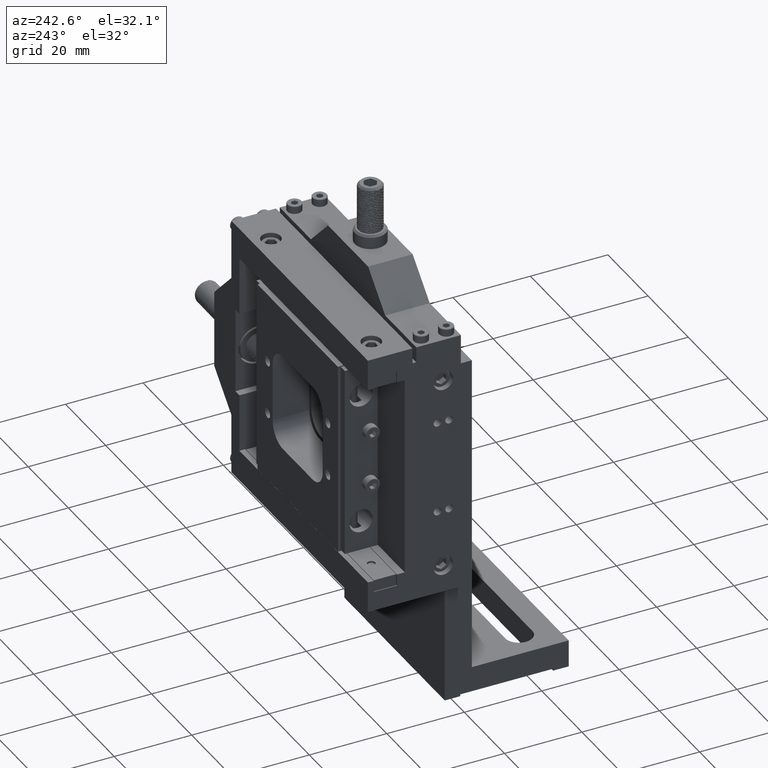
[diagram: clean part render]
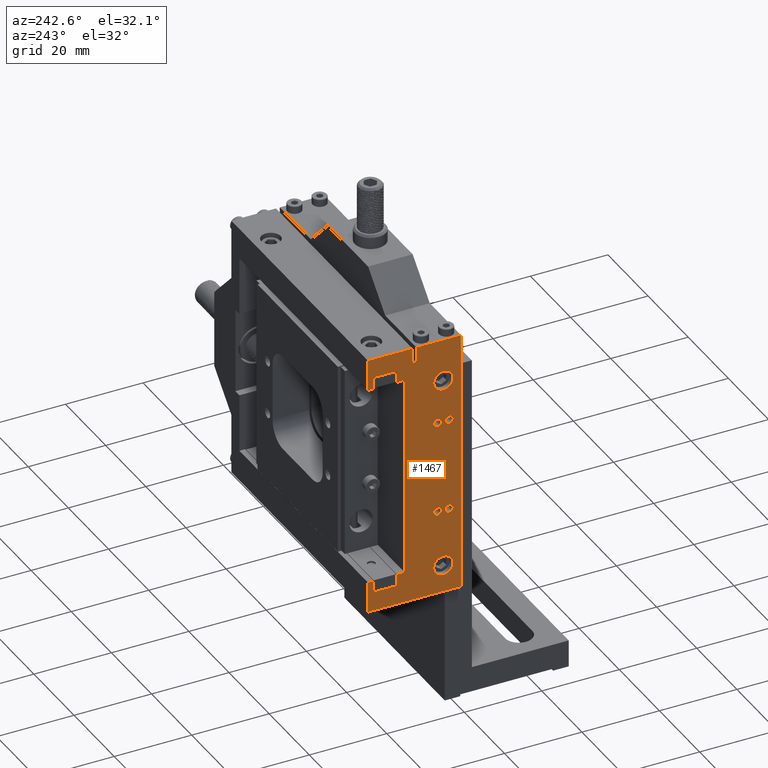
[diagram: same view with one face highlighted and labeled with its STEP entity id]
A machine part, auxiliary view. The second image highlights one B-rep face of the part: STEP entity #1467.
In plain terms, the highlighted planar face has unit normal (-1, 0, 0).
Its self-contained STEP definition (entity closure, byte-faithful):
#210=FACE_BOUND('',#4660,.T.);
#211=FACE_BOUND('',#4661,.T.);
#212=FACE_BOUND('',#4662,.T.);
#213=FACE_BOUND('',#4663,.T.);
#214=FACE_BOUND('',#4664,.T.);
#215=FACE_BOUND('',#4665,.T.);
#1467=ADVANCED_FACE('',(#2992,#210,#211,#212,#213,#214,#215),#23662,.T.);
#2992=FACE_OUTER_BOUND('',#4659,.T.);
#4659=EDGE_LOOP('',(#11293,#11294,#11295,#11296,#11297,#11298,#11299,#11300,
#11301,#11302,#11303,#11304,#11305,#11306,#11307,#11308,#11309,#11310,#11311,
#11312));
#4660=EDGE_LOOP('',(#11313,#11314));
#4661=EDGE_LOOP('',(#11315,#11316));
#4662=EDGE_LOOP('',(#11317,#11318));
#4663=EDGE_LOOP('',(#11319,#11320));
#4664=EDGE_LOOP('',(#11321,#11322));
#4665=EDGE_LOOP('',(#11323,#11324));
#11293=ORIENTED_EDGE('',*,*,#15641,.F.);
#11294=ORIENTED_EDGE('',*,*,#15644,.T.);
#11295=ORIENTED_EDGE('',*,*,#15104,.F.);
#11296=ORIENTED_EDGE('',*,*,#15235,.F.);
#11297=ORIENTED_EDGE('',*,*,#15236,.F.);
#11298=ORIENTED_EDGE('',*,*,#15215,.F.);
#11299=ORIENTED_EDGE('',*,*,#15238,.F.);
#11300=ORIENTED_EDGE('',*,*,#15240,.F.);
#11301=ORIENTED_EDGE('',*,*,#15241,.F.);
#11302=ORIENTED_EDGE('',*,*,#15196,.F.);
#11303=ORIENTED_EDGE('',*,*,#15199,.F.);
#11304=ORIENTED_EDGE('',*,*,#15201,.F.);
#11305=ORIENTED_EDGE('',*,*,#15203,.F.);
#11306=ORIENTED_EDGE('',*,*,#15205,.F.);
#11307=ORIENTED_EDGE('',*,*,#15207,.F.);
#11308=ORIENTED_EDGE('',*,*,#15209,.F.);
#11309=ORIENTED_EDGE('',*,*,#15211,.F.);
#11310=ORIENTED_EDGE('',*,*,#15213,.F.);
#11311=ORIENTED_EDGE('',*,*,#15218,.F.);
#11312=ORIENTED_EDGE('',*,*,#15630,.F.);
#11313=ORIENTED_EDGE('',*,*,#15232,.T.);
#11314=ORIENTED_EDGE('',*,*,#16134,.T.);
#11315=ORIENTED_EDGE('',*,*,#15228,.T.);
#11316=ORIENTED_EDGE('',*,*,#16131,.T.);
#11317=ORIENTED_EDGE('',*,*,#15934,.T.);
#11318=ORIENTED_EDGE('',*,*,#16127,.T.);
#11319=ORIENTED_EDGE('',*,*,#15932,.T.);
#11320=ORIENTED_EDGE('',*,*,#16124,.T.);
#11321=ORIENTED_EDGE('',*,*,#15930,.T.);
#11322=ORIENTED_EDGE('',*,*,#16121,.T.);
#11323=ORIENTED_EDGE('',*,*,#15928,.T.);
#11324=ORIENTED_EDGE('',*,*,#16118,.T.);
#15104=EDGE_CURVE('',#21596,#21591,#19319,.T.);
#15196=EDGE_CURVE('',#21673,#21674,#19395,.T.);
#15199=EDGE_CURVE('',#21675,#21673,#19398,.T.);
#15201=EDGE_CURVE('',#21676,#21675,#19400,.T.);
#15203=EDGE_CURVE('',#21677,#21676,#19402,.T.);
#15205=EDGE_CURVE('',#21678,#21677,#19404,.T.);
#15207=EDGE_CURVE('',#21679,#21678,#19406,.T.);
#15209=EDGE_CURVE('',#21680,#21679,#19408,.T.);
#15211=EDGE_CURVE('',#21681,#21680,#19410,.T.);
#15213=EDGE_CURVE('',#21682,#21681,#19412,.T.);
#15215=EDGE_CURVE('',#21683,#21684,#19414,.T.);
#15218=EDGE_CURVE('',#21685,#21682,#19417,.T.);
#15228=EDGE_CURVE('',#21697,#22121,#16854,.T.);
#15232=EDGE_CURVE('',#21699,#22123,#16856,.T.);
#15235=EDGE_CURVE('',#21700,#21596,#19430,.T.);
#15236=EDGE_CURVE('',#21684,#21700,#19431,.T.);
#15238=EDGE_CURVE('',#21701,#21683,#19433,.T.);
#15240=EDGE_CURVE('',#21702,#21701,#19435,.T.);
#15241=EDGE_CURVE('',#21674,#21702,#19436,.T.);
#15630=EDGE_CURVE('',#21876,#21685,#19781,.T.);
#15641=EDGE_CURVE('',#21881,#21876,#19792,.T.);
#15644=EDGE_CURVE('',#21881,#21591,#19795,.T.);
#15928=EDGE_CURVE('',#21688,#22114,#16982,.T.);
#15930=EDGE_CURVE('',#21690,#22116,#16984,.T.);
#15932=EDGE_CURVE('',#21692,#22118,#16986,.T.);
#15934=EDGE_CURVE('',#21694,#22120,#16988,.T.);
#16118=EDGE_CURVE('',#22114,#21688,#17102,.T.);
#16121=EDGE_CURVE('',#22116,#21690,#17104,.T.);
#16124=EDGE_CURVE('',#22118,#21692,#17106,.T.);
#16127=EDGE_CURVE('',#22120,#21694,#17108,.T.);
#16131=EDGE_CURVE('',#22121,#21697,#17111,.T.);
#16134=EDGE_CURVE('',#22123,#21699,#17113,.T.);
#16854=(
BOUNDED_CURVE()
B_SPLINE_CURVE(2,(#84515,#84516,#84517,#84518,#84519),.UNSPECIFIED.,.F.,
 .F.)
B_SPLINE_CURVE_WITH_KNOTS((3,2,3),(-15.707963267949,-11.7809724509617,-7.85398163397448),
 .UNSPECIFIED.)
CURVE()
GEOMETRIC_REPRESENTATION_ITEM()
RATIONAL_B_SPLINE_CURVE((1.,0.707106781186548,1.,0.707106781186548,1.))
REPRESENTATION_ITEM('')
);
#16856=(
BOUNDED_CURVE()
B_SPLINE_CURVE(2,(#84582,#84583,#84584,#84585,#84586),.UNSPECIFIED.,.F.,
 .F.)
B_SPLINE_CURVE_WITH_KNOTS((3,2,3),(-15.707963267949,-11.7809724509617,-7.85398163397449),
 .UNSPECIFIED.)
CURVE()
GEOMETRIC_REPRESENTATION_ITEM()
RATIONAL_B_SPLINE_CURVE((1.,0.707106781186548,1.,0.707106781186548,1.))
REPRESENTATION_ITEM('')
);
#16982=(
BOUNDED_CURVE()
B_SPLINE_CURVE(2,(#91999,#92000,#92001,#92002,#92003),.UNSPECIFIED.,.F.,
 .F.)
B_SPLINE_CURVE_WITH_KNOTS((3,2,3),(-1.58100650291906,-2.22044604925031E-16,
1.58100650291906),.UNSPECIFIED.)
CURVE()
GEOMETRIC_REPRESENTATION_ITEM()
RATIONAL_B_SPLINE_CURVE((1.,0.707106781186548,1.,0.707106781186547,1.))
REPRESENTATION_ITEM('')
);
#16984=(
BOUNDED_CURVE()
B_SPLINE_CURVE(2,(#92009,#92010,#92011,#92012,#92013),.UNSPECIFIED.,.F.,
 .F.)
B_SPLINE_CURVE_WITH_KNOTS((3,2,3),(-1.58100650291907,2.22044604925031E-16,
1.58100650291907),.UNSPECIFIED.)
CURVE()
GEOMETRIC_REPRESENTATION_ITEM()
RATIONAL_B_SPLINE_CURVE((1.,0.707106781186548,1.,0.707106781186547,1.))
REPRESENTATION_ITEM('')
);
#16986=(
BOUNDED_CURVE()
B_SPLINE_CURVE(2,(#92019,#92020,#92021,#92022,#92023),.UNSPECIFIED.,.F.,
 .F.)
B_SPLINE_CURVE_WITH_KNOTS((3,2,3),(-1.58100650291906,-2.22044604925031E-16,
1.58100650291906),.UNSPECIFIED.)
CURVE()
GEOMETRIC_REPRESENTATION_ITEM()
RATIONAL_B_SPLINE_CURVE((1.,0.707106781186548,1.,0.707106781186547,1.))
REPRESENTATION_ITEM('')
);
#16988=(
BOUNDED_CURVE()
B_SPLINE_CURVE(2,(#92029,#92030,#92031,#92032,#92033),.UNSPECIFIED.,.F.,
 .F.)
B_SPLINE_CURVE_WITH_KNOTS((3,2,3),(-1.58100650291907,2.22044604925031E-16,
1.58100650291907),.UNSPECIFIED.)
CURVE()
GEOMETRIC_REPRESENTATION_ITEM()
RATIONAL_B_SPLINE_CURVE((1.,0.707106781186548,1.,0.707106781186547,1.))
REPRESENTATION_ITEM('')
);
#17102=(
BOUNDED_CURVE()
B_SPLINE_CURVE(2,(#93065,#93066,#93067,#93068,#93069),.UNSPECIFIED.,.F.,
 .F.)
B_SPLINE_CURVE_WITH_KNOTS((3,2,3),(1.58100650291906,3.16201300583812,4.74301950875719),
 .UNSPECIFIED.)
CURVE()
GEOMETRIC_REPRESENTATION_ITEM()
RATIONAL_B_SPLINE_CURVE((1.,0.707106781186548,1.,0.707106781186548,1.))
REPRESENTATION_ITEM('')
);
#17104=(
BOUNDED_CURVE()
B_SPLINE_CURVE(2,(#93077,#93078,#93079,#93080,#93081),.UNSPECIFIED.,.F.,
 .F.)
B_SPLINE_CURVE_WITH_KNOTS((3,2,3),(1.58100650291907,3.16201300583813,4.7430195087572),
 .UNSPECIFIED.)
CURVE()
GEOMETRIC_REPRESENTATION_ITEM()
RATIONAL_B_SPLINE_CURVE((1.,0.707106781186548,1.,0.707106781186548,1.))
REPRESENTATION_ITEM('')
);
#17106=(
BOUNDED_CURVE()
B_SPLINE_CURVE(2,(#93089,#93090,#93091,#93092,#93093),.UNSPECIFIED.,.F.,
 .F.)
B_SPLINE_CURVE_WITH_KNOTS((3,2,3),(1.58100650291906,3.16201300583812,4.74301950875719),
 .UNSPECIFIED.)
CURVE()
GEOMETRIC_REPRESENTATION_ITEM()
RATIONAL_B_SPLINE_CURVE((1.,0.707106781186548,1.,0.707106781186548,1.))
REPRESENTATION_ITEM('')
);
#17108=(
BOUNDED_CURVE()
B_SPLINE_CURVE(2,(#93101,#93102,#93103,#93104,#93105),.UNSPECIFIED.,.F.,
 .F.)
B_SPLINE_CURVE_WITH_KNOTS((3,2,3),(1.58100650291907,3.16201300583813,4.7430195087572),
 .UNSPECIFIED.)
CURVE()
GEOMETRIC_REPRESENTATION_ITEM()
RATIONAL_B_SPLINE_CURVE((1.,0.707106781186548,1.,0.707106781186548,1.))
REPRESENTATION_ITEM('')
);
#17111=(
BOUNDED_CURVE()
B_SPLINE_CURVE(2,(#93118,#93119,#93120,#93121,#93122),.UNSPECIFIED.,.F.,
 .F.)
B_SPLINE_CURVE_WITH_KNOTS((3,2,3),(-7.85398163397448,-3.92699081698724,
0.),.UNSPECIFIED.)
CURVE()
GEOMETRIC_REPRESENTATION_ITEM()
RATIONAL_B_SPLINE_CURVE((1.,0.707106781186548,1.,0.707106781186548,1.))
REPRESENTATION_ITEM('')
);
#17113=(
BOUNDED_CURVE()
B_SPLINE_CURVE(2,(#93130,#93131,#93132,#93133,#93134),.UNSPECIFIED.,.F.,
 .F.)
B_SPLINE_CURVE_WITH_KNOTS((3,2,3),(-7.85398163397449,-3.92699081698724,
0.),.UNSPECIFIED.)
CURVE()
GEOMETRIC_REPRESENTATION_ITEM()
RATIONAL_B_SPLINE_CURVE((1.,0.707106781186547,1.,0.707106781186547,1.))
REPRESENTATION_ITEM('')
);
#19319=B_SPLINE_CURVE_WITH_KNOTS('',1,(#84159,#84160),.UNSPECIFIED.,.F.,
 .F.,(2,2),(0.,1.0000000000001),.UNSPECIFIED.);
#19395=B_SPLINE_CURVE_WITH_KNOTS('',1,(#84448,#84449),.UNSPECIFIED.,.F.,
 .F.,(2,2),(0.,3.00000000000001),.UNSPECIFIED.);
#19398=B_SPLINE_CURVE_WITH_KNOTS('',1,(#84454,#84455),.UNSPECIFIED.,.F.,
 .F.,(2,2),(0.,2.),.UNSPECIFIED.);
#19400=B_SPLINE_CURVE_WITH_KNOTS('',1,(#84458,#84459),.UNSPECIFIED.,.F.,
 .F.,(2,2),(0.,52.),.UNSPECIFIED.);
#19402=B_SPLINE_CURVE_WITH_KNOTS('',1,(#84462,#84463),.UNSPECIFIED.,.F.,
 .F.,(2,2),(0.,2.),.UNSPECIFIED.);
#19404=B_SPLINE_CURVE_WITH_KNOTS('',1,(#84466,#84467),.UNSPECIFIED.,.F.,
 .F.,(2,2),(0.,3.0000000000001),.UNSPECIFIED.);
#19406=B_SPLINE_CURVE_WITH_KNOTS('',1,(#84470,#84471),.UNSPECIFIED.,.F.,
 .F.,(2,2),(0.,6.),.UNSPECIFIED.);
#19408=B_SPLINE_CURVE_WITH_KNOTS('',1,(#84474,#84475),.UNSPECIFIED.,.F.,
 .F.,(2,2),(0.,3.0000000000001),.UNSPECIFIED.);
#19410=B_SPLINE_CURVE_WITH_KNOTS('',1,(#84478,#84479),.UNSPECIFIED.,.F.,
 .F.,(2,2),(0.,1.5),.UNSPECIFIED.);
#19412=B_SPLINE_CURVE_WITH_KNOTS('',1,(#84482,#84483),.UNSPECIFIED.,.F.,
 .F.,(2,2),(0.,8.0000000000001),.UNSPECIFIED.);
#19414=B_SPLINE_CURVE_WITH_KNOTS('',1,(#84486,#84487),.UNSPECIFIED.,.F.,
 .F.,(2,2),(0.,8.00000000000001),.UNSPECIFIED.);
#19417=B_SPLINE_CURVE_WITH_KNOTS('',1,(#84492,#84493),.UNSPECIFIED.,.F.,
 .F.,(2,2),(0.,24.),.UNSPECIFIED.);
#19430=B_SPLINE_CURVE_WITH_KNOTS('',1,(#84591,#84592),.UNSPECIFIED.,.F.,
 .F.,(2,2),(0.,4.),.UNSPECIFIED.);
#19431=B_SPLINE_CURVE_WITH_KNOTS('',1,(#84593,#84594),.UNSPECIFIED.,.F.,
 .F.,(2,2),(0.,11.5),.UNSPECIFIED.);
#19433=B_SPLINE_CURVE_WITH_KNOTS('',1,(#84597,#84598),.UNSPECIFIED.,.F.,
 .F.,(2,2),(0.,1.5),.UNSPECIFIED.);
#19435=B_SPLINE_CURVE_WITH_KNOTS('',1,(#84601,#84602),.UNSPECIFIED.,.F.,
 .F.,(2,2),(0.,3.00000000000001),.UNSPECIFIED.);
#19436=B_SPLINE_CURVE_WITH_KNOTS('',1,(#84603,#84604),.UNSPECIFIED.,.F.,
 .F.,(2,2),(0.,6.),.UNSPECIFIED.);
#19781=B_SPLINE_CURVE_WITH_KNOTS('',1,(#91127,#91128),.UNSPECIFIED.,.F.,
 .F.,(2,2),(0.,68.),.UNSPECIFIED.);
#19792=B_SPLINE_CURVE_WITH_KNOTS('',1,(#91149,#91150),.UNSPECIFIED.,.F.,
 .F.,(2,2),(0.,11.5),.UNSPECIFIED.);
#19795=B_SPLINE_CURVE_WITH_KNOTS('',1,(#91155,#91156),.UNSPECIFIED.,.F.,
 .F.,(2,2),(0.,4.),.UNSPECIFIED.);
#21591=VERTEX_POINT('',#68092);
#21596=VERTEX_POINT('',#68097);
#21673=VERTEX_POINT('',#68174);
#21674=VERTEX_POINT('',#68175);
#21675=VERTEX_POINT('',#68176);
#21676=VERTEX_POINT('',#68177);
#21677=VERTEX_POINT('',#68178);
#21678=VERTEX_POINT('',#68179);
#21679=VERTEX_POINT('',#68180);
#21680=VERTEX_POINT('',#68181);
#21681=VERTEX_POINT('',#68182);
#21682=VERTEX_POINT('',#68183);
#21683=VERTEX_POINT('',#68184);
#21684=VERTEX_POINT('',#68185);
#21685=VERTEX_POINT('',#68186);
#21688=VERTEX_POINT('',#68189);
#21690=VERTEX_POINT('',#68191);
#21692=VERTEX_POINT('',#68193);
#21694=VERTEX_POINT('',#68195);
#21697=VERTEX_POINT('',#68198);
#21699=VERTEX_POINT('',#68200);
#21700=VERTEX_POINT('',#68201);
#21701=VERTEX_POINT('',#68202);
#21702=VERTEX_POINT('',#68203);
#21876=VERTEX_POINT('',#68377);
#21881=VERTEX_POINT('',#68382);
#22114=VERTEX_POINT('',#68615);
#22116=VERTEX_POINT('',#68617);
#22118=VERTEX_POINT('',#68619);
#22120=VERTEX_POINT('',#68621);
#22121=VERTEX_POINT('',#68622);
#22123=VERTEX_POINT('',#68624);
#23662=PLANE('',#24920);
#24920=AXIS2_PLACEMENT_3D('',#66659,#26265,$);
#26265=DIRECTION('',(-1.,0.,0.));
#66659=CARTESIAN_POINT('',(-45.9999975952793,1.47999383561393,29.0808218490966));
#68092=CARTESIAN_POINT('',(-45.9999975952793,15.4999938356139,100.000821849097));
#68097=CARTESIAN_POINT('',(-45.9999975952793,16.499993835614,100.000821849097));
#68174=CARTESIAN_POINT('',(-45.9999975952793,20.499993835614,96.0008218490966));
#68175=CARTESIAN_POINT('',(-45.9999975952793,20.499993835614,99.0008218490966));
#68176=CARTESIAN_POINT('',(-45.9999975952793,18.499993835614,96.0008218490966));
#68177=CARTESIAN_POINT('',(-45.9999975952793,18.499993835614,44.0008218490967));
#68178=CARTESIAN_POINT('',(-45.9999975952793,20.499993835614,44.0008218490967));
#68179=CARTESIAN_POINT('',(-45.9999975952793,20.499993835614,41.0008218490966));
#68180=CARTESIAN_POINT('',(-45.9999975952793,26.499993835614,41.0008218490966));
#68181=CARTESIAN_POINT('',(-45.9999975952793,26.499993835614,44.0008218490967));
#68182=CARTESIAN_POINT('',(-45.9999975952793,27.999993835614,44.0008218490967));
#68183=CARTESIAN_POINT('',(-45.9999975952793,27.999993835614,36.0008218490966));
#68184=CARTESIAN_POINT('',(-45.9999975952793,27.999993835614,96.0008218490966));
#68185=CARTESIAN_POINT('',(-45.9999975952793,27.999993835614,104.000821849097));
#68186=CARTESIAN_POINT('',(-45.9999975952793,3.99999383561402,36.0008218490967));
#68189=CARTESIAN_POINT('',(-45.9999975952793,8.00649383561406,82.0008218490967));
#68191=CARTESIAN_POINT('',(-45.9999975952793,8.00649383561406,58.0008218490967));
#68193=CARTESIAN_POINT('',(-45.9999975952793,11.006493835614,82.0008218490967));
#68195=CARTESIAN_POINT('',(-45.9999975952793,11.0064938356141,58.0008218490967));
#68198=CARTESIAN_POINT('',(-45.9999975952793,8.49999383561404,95.5008218490965));
#68200=CARTESIAN_POINT('',(-45.9999975952793,8.49999383561402,45.5008218490967));
#68201=CARTESIAN_POINT('',(-45.9999975952793,16.499993835614,104.000821849097));
#68202=CARTESIAN_POINT('',(-45.9999975952793,26.499993835614,96.0008218490966));
#68203=CARTESIAN_POINT('',(-45.9999975952793,26.499993835614,99.0008218490966));
#68377=CARTESIAN_POINT('',(-45.9999975952793,3.99999383561394,104.000821849097));
#68382=CARTESIAN_POINT('',(-45.9999975952793,15.4999938356139,104.000821849097));
#68615=CARTESIAN_POINT('',(-45.9999975952793,5.99349383561406,82.0008218490967));
#68617=CARTESIAN_POINT('',(-45.9999975952793,5.99349383561405,58.0008218490967));
#68619=CARTESIAN_POINT('',(-45.9999975952793,8.99349383561403,82.0008218490967));
#68621=CARTESIAN_POINT('',(-45.9999975952793,8.99349383561405,58.0008218490967));
#68622=CARTESIAN_POINT('',(-45.9999975952793,8.49999383561404,90.5008218490965));
#68624=CARTESIAN_POINT('',(-45.9999975952793,8.49999383561401,40.5008218490967));
#84159=CARTESIAN_POINT('',(-45.9999975952793,16.499993835614,100.000821849097));
#84160=CARTESIAN_POINT('',(-45.9999975952793,15.4999938356139,100.000821849097));
#84448=CARTESIAN_POINT('',(-45.9999975952793,20.499993835614,96.0008218490966));
#84449=CARTESIAN_POINT('',(-45.9999975952793,20.499993835614,99.0008218490966));
#84454=CARTESIAN_POINT('',(-45.9999975952793,18.499993835614,96.0008218490966));
#84455=CARTESIAN_POINT('',(-45.9999975952793,20.499993835614,96.0008218490966));
#84458=CARTESIAN_POINT('',(-45.9999975952793,18.499993835614,44.0008218490967));
#84459=CARTESIAN_POINT('',(-45.9999975952793,18.499993835614,96.0008218490966));
#84462=CARTESIAN_POINT('',(-45.9999975952793,20.499993835614,44.0008218490967));
#84463=CARTESIAN_POINT('',(-45.9999975952793,18.499993835614,44.0008218490967));
#84466=CARTESIAN_POINT('',(-45.9999975952793,20.499993835614,41.0008218490966));
#84467=CARTESIAN_POINT('',(-45.9999975952793,20.499993835614,44.0008218490967));
#84470=CARTESIAN_POINT('',(-45.9999975952793,26.499993835614,41.0008218490966));
#84471=CARTESIAN_POINT('',(-45.9999975952793,20.499993835614,41.0008218490966));
#84474=CARTESIAN_POINT('',(-45.9999975952793,26.499993835614,44.0008218490967));
#84475=CARTESIAN_POINT('',(-45.9999975952793,26.499993835614,41.0008218490966));
#84478=CARTESIAN_POINT('',(-45.9999975952793,27.999993835614,44.0008218490967));
#84479=CARTESIAN_POINT('',(-45.9999975952793,26.499993835614,44.0008218490967));
#84482=CARTESIAN_POINT('',(-45.9999975952793,27.999993835614,36.0008218490966));
#84483=CARTESIAN_POINT('',(-45.9999975952793,27.999993835614,44.0008218490967));
#84486=CARTESIAN_POINT('',(-45.9999975952793,27.999993835614,96.0008218490966));
#84487=CARTESIAN_POINT('',(-45.9999975952793,27.999993835614,104.000821849097));
#84492=CARTESIAN_POINT('',(-45.9999975952793,3.99999383561402,36.0008218490967));
#84493=CARTESIAN_POINT('',(-45.9999975952793,27.999993835614,36.0008218490966));
#84515=CARTESIAN_POINT('',(-45.9999975952793,8.49999383561404,95.5008218490965));
#84516=CARTESIAN_POINT('',(-45.9999975952793,5.99999383561404,95.5008218490965));
#84517=CARTESIAN_POINT('',(-45.9999975952793,5.99999383561404,93.0008218490965));
#84518=CARTESIAN_POINT('',(-45.9999975952793,5.99999383561404,90.5008218490965));
#84519=CARTESIAN_POINT('',(-45.9999975952793,8.49999383561404,90.5008218490965));
#84582=CARTESIAN_POINT('',(-45.9999975952793,8.49999383561402,45.5008218490967));
#84583=CARTESIAN_POINT('',(-45.9999975952793,5.99999383561402,45.5008218490966));
#84584=CARTESIAN_POINT('',(-45.9999975952793,5.99999383561402,43.0008218490967));
#84585=CARTESIAN_POINT('',(-45.9999975952793,5.99999383561402,40.5008218490967));
#84586=CARTESIAN_POINT('',(-45.9999975952793,8.49999383561401,40.5008218490967));
#84591=CARTESIAN_POINT('',(-45.9999975952793,16.499993835614,104.000821849097));
#84592=CARTESIAN_POINT('',(-45.9999975952793,16.499993835614,100.000821849097));
#84593=CARTESIAN_POINT('',(-45.9999975952793,27.999993835614,104.000821849097));
#84594=CARTESIAN_POINT('',(-45.9999975952793,16.499993835614,104.000821849097));
#84597=CARTESIAN_POINT('',(-45.9999975952793,26.499993835614,96.0008218490966));
#84598=CARTESIAN_POINT('',(-45.9999975952793,27.999993835614,96.0008218490966));
#84601=CARTESIAN_POINT('',(-45.9999975952793,26.499993835614,99.0008218490966));
#84602=CARTESIAN_POINT('',(-45.9999975952793,26.499993835614,96.0008218490966));
#84603=CARTESIAN_POINT('',(-45.9999975952793,20.499993835614,99.0008218490966));
#84604=CARTESIAN_POINT('',(-45.9999975952793,26.499993835614,99.0008218490966));
#91127=CARTESIAN_POINT('',(-45.9999975952793,3.99999383561394,104.000821849097));
#91128=CARTESIAN_POINT('',(-45.9999975952793,3.99999383561402,36.0008218490967));
#91149=CARTESIAN_POINT('',(-45.9999975952793,15.4999938356139,104.000821849097));
#91150=CARTESIAN_POINT('',(-45.9999975952793,3.99999383561394,104.000821849097));
#91155=CARTESIAN_POINT('',(-45.9999975952793,15.4999938356139,104.000821849097));
#91156=CARTESIAN_POINT('',(-45.9999975952793,15.4999938356139,100.000821849097));
#91999=CARTESIAN_POINT('',(-45.9999975952793,8.00649383561406,82.0008218490967));
#92000=CARTESIAN_POINT('',(-45.9999975952793,8.00649383561406,83.0073218490967));
#92001=CARTESIAN_POINT('',(-45.9999975952793,6.99999383561406,83.0073218490967));
#92002=CARTESIAN_POINT('',(-45.9999975952793,5.99349383561406,83.0073218490967));
#92003=CARTESIAN_POINT('',(-45.9999975952793,5.99349383561406,82.0008218490967));
#92009=CARTESIAN_POINT('',(-45.9999975952793,8.00649383561406,58.0008218490967));
#92010=CARTESIAN_POINT('',(-45.9999975952793,8.00649383561406,59.0073218490966));
#92011=CARTESIAN_POINT('',(-45.9999975952793,6.99999383561406,59.0073218490967));
#92012=CARTESIAN_POINT('',(-45.9999975952793,5.99349383561405,59.0073218490966));
#92013=CARTESIAN_POINT('',(-45.9999975952793,5.99349383561405,58.0008218490967));
#92019=CARTESIAN_POINT('',(-45.9999975952793,11.006493835614,82.0008218490967));
#92020=CARTESIAN_POINT('',(-45.9999975952793,11.006493835614,83.0073218490967));
#92021=CARTESIAN_POINT('',(-45.9999975952793,9.99999383561403,83.0073218490967));
#92022=CARTESIAN_POINT('',(-45.9999975952793,8.99349383561403,83.0073218490967));
#92023=CARTESIAN_POINT('',(-45.9999975952793,8.99349383561403,82.0008218490967));
#92029=CARTESIAN_POINT('',(-45.9999975952793,11.0064938356141,58.0008218490967));
#92030=CARTESIAN_POINT('',(-45.9999975952793,11.0064938356141,59.0073218490966));
#92031=CARTESIAN_POINT('',(-45.9999975952793,9.99999383561406,59.0073218490967));
#92032=CARTESIAN_POINT('',(-45.9999975952793,8.99349383561406,59.0073218490966));
#92033=CARTESIAN_POINT('',(-45.9999975952793,8.99349383561405,58.0008218490967));
#93065=CARTESIAN_POINT('',(-45.9999975952793,5.99349383561406,82.0008218490967));
#93066=CARTESIAN_POINT('',(-45.9999975952793,5.99349383561406,80.9943218490967));
#93067=CARTESIAN_POINT('',(-45.9999975952793,6.99999383561406,80.9943218490967));
#93068=CARTESIAN_POINT('',(-45.9999975952793,8.00649383561406,80.9943218490967));
#93069=CARTESIAN_POINT('',(-45.9999975952793,8.00649383561406,82.0008218490967));
#93077=CARTESIAN_POINT('',(-45.9999975952793,5.99349383561405,58.0008218490967));
#93078=CARTESIAN_POINT('',(-45.9999975952793,5.99349383561406,56.9943218490967));
#93079=CARTESIAN_POINT('',(-45.9999975952793,6.99999383561406,56.9943218490967));
#93080=CARTESIAN_POINT('',(-45.9999975952793,8.00649383561406,56.9943218490967));
#93081=CARTESIAN_POINT('',(-45.9999975952793,8.00649383561406,58.0008218490967));
#93089=CARTESIAN_POINT('',(-45.9999975952793,8.99349383561403,82.0008218490967));
#93090=CARTESIAN_POINT('',(-45.9999975952793,8.99349383561403,80.9943218490967));
#93091=CARTESIAN_POINT('',(-45.9999975952793,9.99999383561403,80.9943218490967));
#93092=CARTESIAN_POINT('',(-45.9999975952793,11.006493835614,80.9943218490967));
#93093=CARTESIAN_POINT('',(-45.9999975952793,11.006493835614,82.0008218490967));
#93101=CARTESIAN_POINT('',(-45.9999975952793,8.99349383561405,58.0008218490967));
#93102=CARTESIAN_POINT('',(-45.9999975952793,8.99349383561405,56.9943218490967));
#93103=CARTESIAN_POINT('',(-45.9999975952793,9.99999383561406,56.9943218490967));
#93104=CARTESIAN_POINT('',(-45.9999975952793,11.0064938356141,56.9943218490967));
#93105=CARTESIAN_POINT('',(-45.9999975952793,11.0064938356141,58.0008218490967));
#93118=CARTESIAN_POINT('',(-45.9999975952793,8.49999383561404,90.5008218490965));
#93119=CARTESIAN_POINT('',(-45.9999975952793,10.999993835614,90.5008218490965));
#93120=CARTESIAN_POINT('',(-45.9999975952793,10.999993835614,93.0008218490965));
#93121=CARTESIAN_POINT('',(-45.9999975952793,10.999993835614,95.5008218490965));
#93122=CARTESIAN_POINT('',(-45.9999975952793,8.49999383561404,95.5008218490965));
#93130=CARTESIAN_POINT('',(-45.9999975952793,8.49999383561401,40.5008218490967));
#93131=CARTESIAN_POINT('',(-45.9999975952793,10.999993835614,40.5008218490967));
#93132=CARTESIAN_POINT('',(-45.9999975952793,10.999993835614,43.0008218490967));
#93133=CARTESIAN_POINT('',(-45.9999975952793,10.999993835614,45.5008218490967));
#93134=CARTESIAN_POINT('',(-45.9999975952793,8.49999383561402,45.5008218490967));